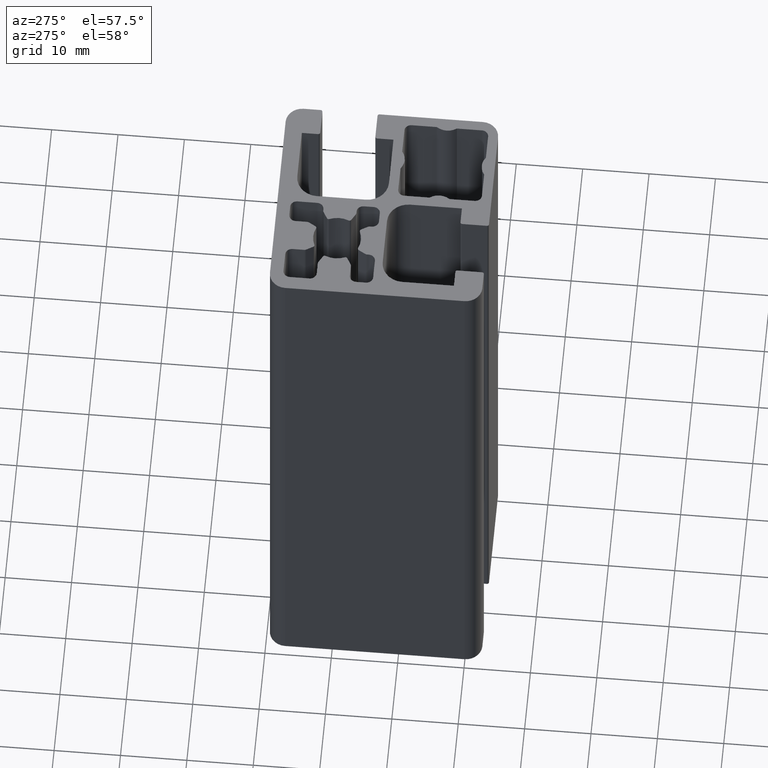
[diagram: clean part render]
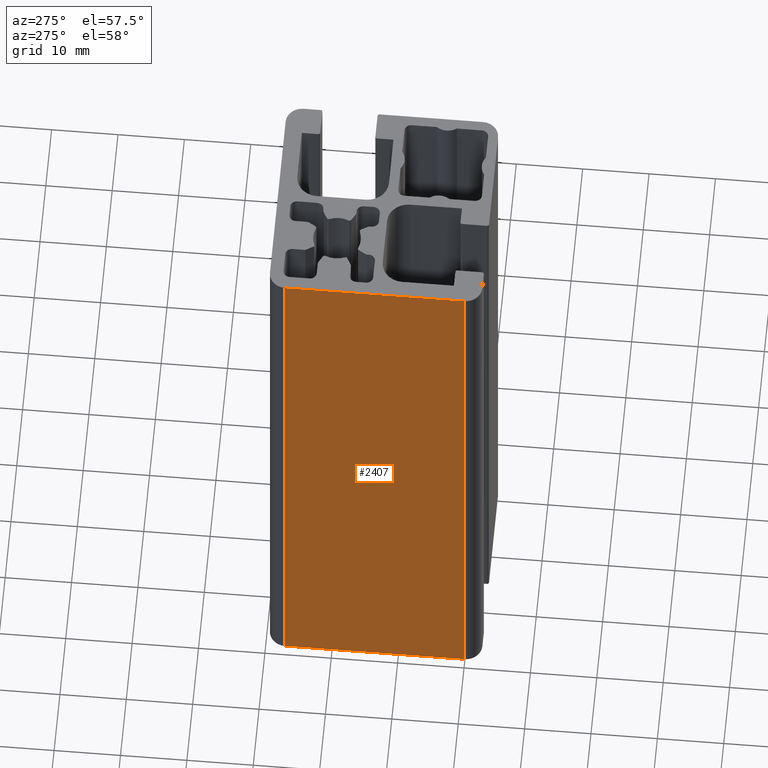
[diagram: same view with one face highlighted and labeled with its STEP entity id]
A machine part, auxiliary view. The second image highlights one B-rep face of the part: STEP entity #2407.
In plain terms, the highlighted planar face has unit normal (-1, 0, 0).
Its self-contained STEP definition (entity closure, byte-faithful):
#337=FACE_OUTER_BOUND('',#461,.T.);
#461=EDGE_LOOP('',(#2091,#2092,#2093,#2094));
#682=LINE('',#4104,#906);
#685=LINE('',#4113,#909);
#687=LINE('',#4119,#911);
#688=LINE('',#4120,#912);
#906=VECTOR('',#3374,27.);
#909=VECTOR('',#3383,100.);
#911=VECTOR('',#3389,100.);
#912=VECTOR('',#3390,27.);
#1149=VERTEX_POINT('',#4101);
#1150=VERTEX_POINT('',#4103);
#1153=VERTEX_POINT('',#4112);
#1155=VERTEX_POINT('',#4118);
#1500=EDGE_CURVE('',#1150,#1149,#682,.T.);
#1505=EDGE_CURVE('',#1153,#1150,#685,.T.);
#1508=EDGE_CURVE('',#1155,#1149,#687,.T.);
#1509=EDGE_CURVE('',#1153,#1155,#688,.T.);
#2091=ORIENTED_EDGE('',*,*,#1500,.T.);
#2092=ORIENTED_EDGE('',*,*,#1508,.F.);
#2093=ORIENTED_EDGE('',*,*,#1509,.F.);
#2094=ORIENTED_EDGE('',*,*,#1505,.T.);
#2288=PLANE('',#2664);
#2407=ADVANCED_FACE('',(#337),#2288,.T.);
#2664=AXIS2_PLACEMENT_3D('',#4117,#3387,#3388);
#3374=DIRECTION('',(0.,1.,0.));
#3383=DIRECTION('',(0.,0.,1.));
#3387=DIRECTION('center_axis',(-1.,0.,0.));
#3388=DIRECTION('ref_axis',(0.,-1.,0.));
#3389=DIRECTION('',(0.,0.,1.));
#3390=DIRECTION('',(0.,1.,0.));
#4101=CARTESIAN_POINT('',(-9.5,7.,100.));
#4103=CARTESIAN_POINT('',(-9.5,-20.,100.));
#4104=CARTESIAN_POINT('',(-9.5,0.250000000000001,100.));
#4112=CARTESIAN_POINT('',(-9.5,-20.,0.));
#4113=CARTESIAN_POINT('',(-9.5,-20.,0.));
#4117=CARTESIAN_POINT('Origin',(-9.5,7.,0.));
#4118=CARTESIAN_POINT('',(-9.5,7.,0.));
#4119=CARTESIAN_POINT('',(-9.5,7.,0.));
#4120=CARTESIAN_POINT('',(-9.5,0.250000000000001,0.));